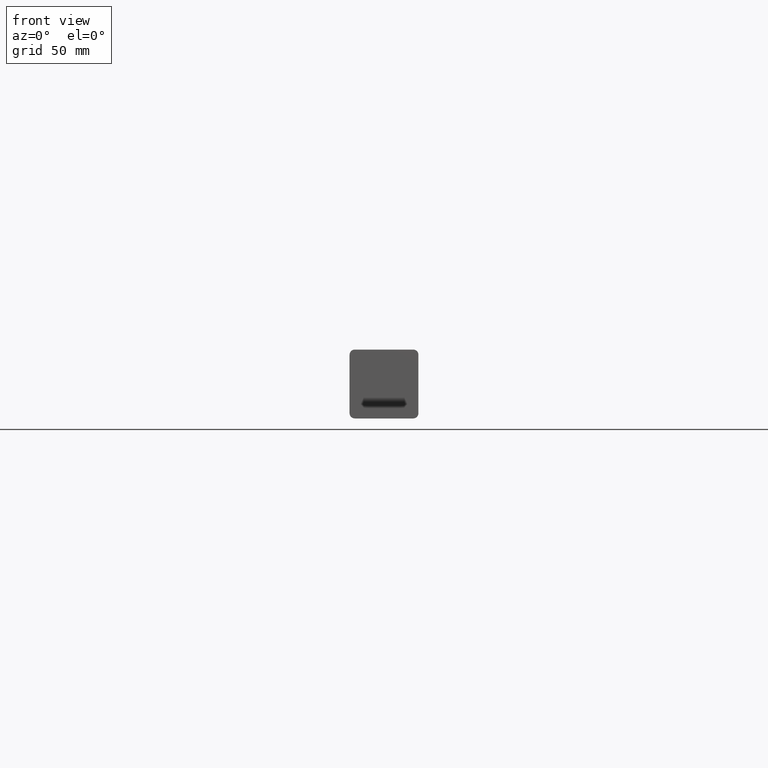
[diagram: clean part render]
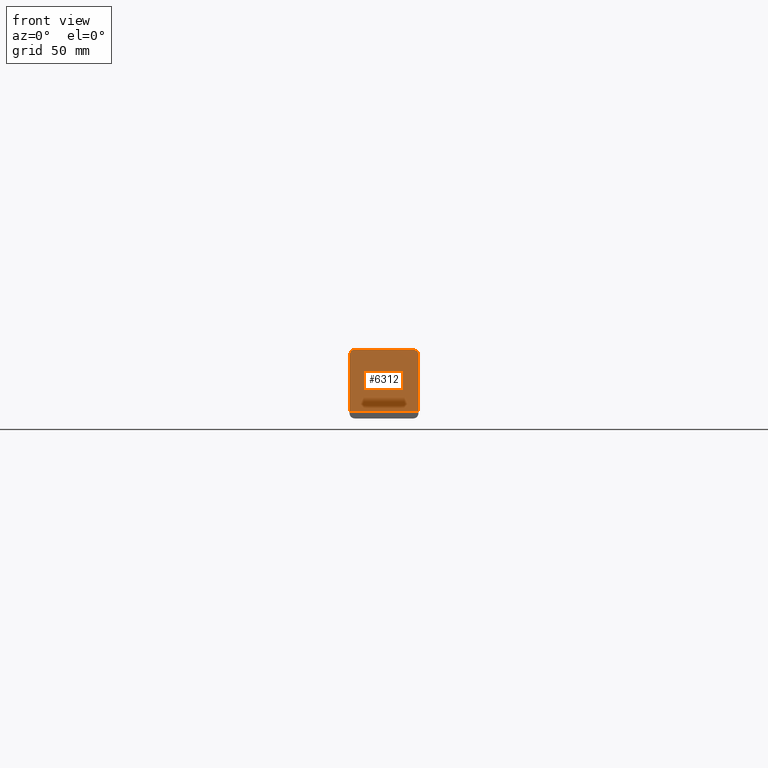
[diagram: same view with one face highlighted and labeled with its STEP entity id]
A machine part, front view. The second image highlights one B-rep face of the part: STEP entity #6312.
In plain terms, the highlighted planar face has unit normal (0, 1, 0).
Its self-contained STEP definition (entity closure, byte-faithful):
#7 = VERTEX_POINT ( 'NONE', #8102 ) ;
#22 = DIRECTION ( 'NONE',  ( 1.000000000000000000, 0.000000000000000000, 0.000000000000000000 ) ) ;
#39 = CARTESIAN_POINT ( 'NONE',  ( 17.00000000000000000, -175.0000000000000000, 17.00000000000001066 ) ) ;
#400 = LINE ( 'NONE', #2953, #10187 ) ;
#531 = DIRECTION ( 'NONE',  ( 0.000000000000000000, 1.000000000000000000, 0.000000000000000000 ) ) ;
#1095 = CARTESIAN_POINT ( 'NONE',  ( -20.00000000000000000, -175.0000000000000000, 20.00000000000000711 ) ) ;
#1294 = VERTEX_POINT ( 'NONE', #10667 ) ;
#1761 = CARTESIAN_POINT ( 'NONE',  ( 0.000000000000000000, -175.0000000000000000, 0.000000000000000000 ) ) ;
#1868 = EDGE_CURVE ( 'NONE', #7708, #7, #9045, .T. ) ;
#2035 = FACE_OUTER_BOUND ( 'NONE', #6919, .T. ) ;
#2145 = DIRECTION ( 'NONE',  ( -3.469446951953615372E-15, 0.000000000000000000, 1.000000000000000000 ) ) ;
#2218 = LINE ( 'NONE', #13687, #10246 ) ;
#2326 = ORIENTED_EDGE ( 'NONE', *, *, #6486, .T. ) ;
#2953 = CARTESIAN_POINT ( 'NONE',  ( 19.99999999999999645, -175.0000000000000000, -19.99999999999999289 ) ) ;
#3213 = AXIS2_PLACEMENT_3D ( 'NONE', #1761, #531, #12825 ) ;
#4015 = PLANE ( 'NONE',  #3213 ) ;
#4306 = EDGE_CURVE ( 'NONE', #9879, #14412, #7510, .T. ) ;
#4509 = AXIS2_PLACEMENT_3D ( 'NONE', #6326, #8739, #14098 ) ;
#4846 = EDGE_CURVE ( 'NONE', #7708, #14412, #11844, .T. ) ;
#5082 = DIRECTION ( 'NONE',  ( -8.673617379884035472E-17, -0.000000000000000000, -1.000000000000000000 ) ) ;
#5086 = VECTOR ( 'NONE', #12878, 1000.000000000000000 ) ;
#5195 = CARTESIAN_POINT ( 'NONE',  ( -20.00000000000000355, -175.0000000000000000, -19.99999999999999289 ) ) ;
#6312 = ADVANCED_FACE ( 'NONE', ( #2035 ), #4015, .F. ) ;
#6326 = CARTESIAN_POINT ( 'NONE',  ( -17.00000000000000000, -175.0000000000000000, 17.00000000000000711 ) ) ;
#6486 = EDGE_CURVE ( 'NONE', #8859, #1294, #2218, .T. ) ;
#6919 = EDGE_LOOP ( 'NONE', ( #8969, #2326, #10240, #7527, #12908, #7853 ) ) ;
#6994 = LINE ( 'NONE', #5195, #5086 ) ;
#7510 = CIRCLE ( 'NONE', #9675, 2.999999999999999112 ) ;
#7527 = ORIENTED_EDGE ( 'NONE', *, *, #4306, .T. ) ;
#7708 = VERTEX_POINT ( 'NONE', #14037 ) ;
#7853 = ORIENTED_EDGE ( 'NONE', *, *, #1868, .T. ) ;
#8102 = CARTESIAN_POINT ( 'NONE',  ( -20.00000000000000000, -175.0000000000000000, 17.00000000000001066 ) ) ;
#8560 = VECTOR ( 'NONE', #22, 1000.000000000000000 ) ;
#8739 = DIRECTION ( 'NONE',  ( -0.000000000000000000, -1.000000000000000000, -0.000000000000000000 ) ) ;
#8859 = VERTEX_POINT ( 'NONE', #11299 ) ;
#8969 = ORIENTED_EDGE ( 'NONE', *, *, #13825, .F. ) ;
#9045 = CIRCLE ( 'NONE', #4509, 2.999999999999999112 ) ;
#9675 = AXIS2_PLACEMENT_3D ( 'NONE', #39, #11212, #2145 ) ;
#9874 = CARTESIAN_POINT ( 'NONE',  ( 20.00000000000000000, -175.0000000000000000, 17.00000000000001066 ) ) ;
#9879 = VERTEX_POINT ( 'NONE', #9874 ) ;
#10187 = VECTOR ( 'NONE', #5082, 1000.000000000000000 ) ;
#10240 = ORIENTED_EDGE ( 'NONE', *, *, #10572, .F. ) ;
#10246 = VECTOR ( 'NONE', #11290, 1000.000000000000000 ) ;
#10274 = CARTESIAN_POINT ( 'NONE',  ( 17.00000000000000355, -175.0000000000000000, 20.00000000000000711 ) ) ;
#10572 = EDGE_CURVE ( 'NONE', #9879, #1294, #400, .T. ) ;
#10667 = CARTESIAN_POINT ( 'NONE',  ( 19.99999999999999645, -175.0000000000000000, -15.99999999999999289 ) ) ;
#11212 = DIRECTION ( 'NONE',  ( -0.000000000000000000, -1.000000000000000000, -0.000000000000000000 ) ) ;
#11290 = DIRECTION ( 'NONE',  ( 1.000000000000000000, 0.000000000000000000, 0.000000000000000000 ) ) ;
#11299 = CARTESIAN_POINT ( 'NONE',  ( -20.00000000000000355, -175.0000000000000000, -15.99999999999999289 ) ) ;
#11844 = LINE ( 'NONE', #1095, #8560 ) ;
#12825 = DIRECTION ( 'NONE',  ( 0.000000000000000000, -0.000000000000000000, 1.000000000000000000 ) ) ;
#12878 = DIRECTION ( 'NONE',  ( 8.673617379884035472E-17, 0.000000000000000000, 1.000000000000000000 ) ) ;
#12908 = ORIENTED_EDGE ( 'NONE', *, *, #4846, .F. ) ;
#13687 = CARTESIAN_POINT ( 'NONE',  ( -20.00000000000000355, -175.0000000000000000, -15.99999999999999289 ) ) ;
#13825 = EDGE_CURVE ( 'NONE', #8859, #7, #6994, .T. ) ;
#14037 = CARTESIAN_POINT ( 'NONE',  ( -17.00000000000000000, -175.0000000000000000, 20.00000000000000711 ) ) ;
#14098 = DIRECTION ( 'NONE',  ( 0.000000000000000000, 0.000000000000000000, 1.000000000000000000 ) ) ;
#14412 = VERTEX_POINT ( 'NONE', #10274 ) ;